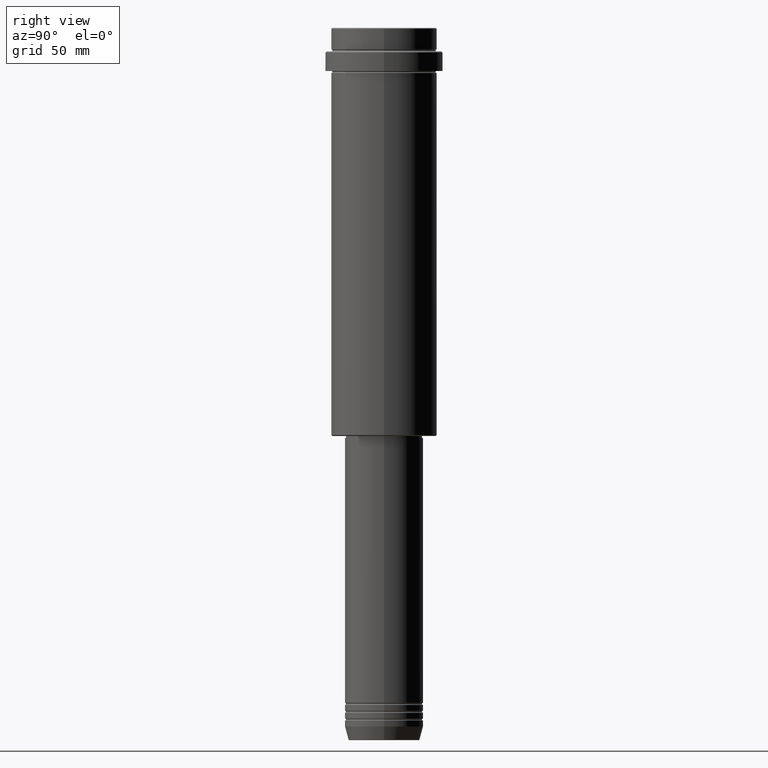
[diagram: clean part render]
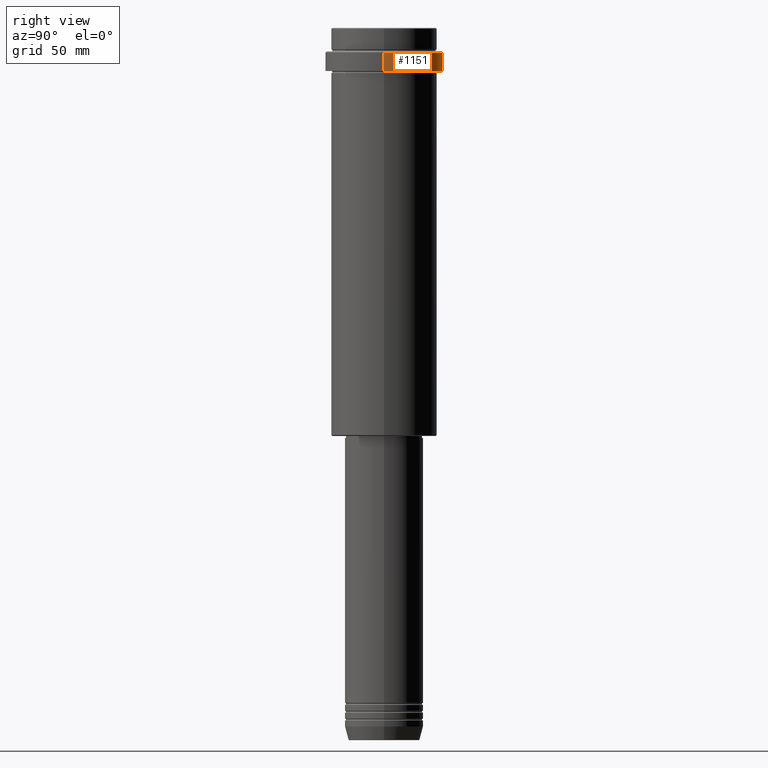
[diagram: same view with one face highlighted and labeled with its STEP entity id]
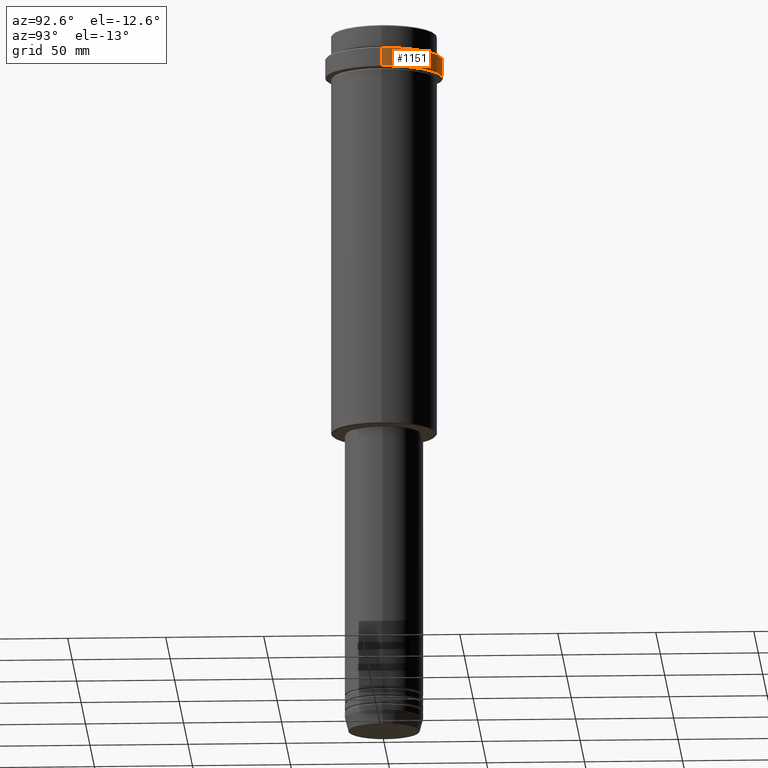
[diagram: same view with one face highlighted and labeled with its STEP entity id]
A machine part, right view. The second image highlights one B-rep face of the part: STEP entity #1151.
A second angle (auxiliary view) of the same face is appended — the face is thin or edge-on in the first view.
In plain terms, the highlighted cylindrical surface (partial cylindrical patch) has radius 30 mm, axis along (-0, -0, 1).
Its self-contained STEP definition (entity closure, byte-faithful):
#21 = CARTESIAN_POINT ( 'NONE',  ( 0.000000000000000000, 0.000000000000000000, -12.50000000000006573 ) ) ;
#29 = EDGE_LOOP ( 'NONE', ( #724, #1277, #457, #1069 ) ) ;
#57 = EDGE_CURVE ( 'NONE', #966, #819, #621, .T. ) ;
#104 = DIRECTION ( 'NONE',  ( 1.000000000000000000, 0.000000000000000000, 0.000000000000000000 ) ) ;
#147 = LINE ( 'NONE', #501, #812 ) ;
#182 = DIRECTION ( 'NONE',  ( -0.000000000000000000, -0.000000000000000000, 1.000000000000000000 ) ) ;
#190 = EDGE_CURVE ( 'NONE', #1194, #1098, #147, .T. ) ;
#192 = DIRECTION ( 'NONE',  ( -0.000000000000000000, -0.000000000000000000, 1.000000000000000000 ) ) ;
#264 = FACE_OUTER_BOUND ( 'NONE', #29, .T. ) ;
#271 = DIRECTION ( 'NONE',  ( -0.000000000000000000, -0.000000000000000000, 1.000000000000000000 ) ) ;
#354 = AXIS2_PLACEMENT_3D ( 'NONE', #1125, #271, #725 ) ;
#411 = CARTESIAN_POINT ( 'NONE',  ( -29.99999999999999645, 3.673940397442058389E-15, -22.00000000000000355 ) ) ;
#457 = ORIENTED_EDGE ( 'NONE', *, *, #1375, .T. ) ;
#501 = CARTESIAN_POINT ( 'NONE',  ( -30.00000000000000000, 3.673940397442059178E-15, 0.000000000000000000 ) ) ;
#621 = LINE ( 'NONE', #638, #899 ) ;
#627 = CARTESIAN_POINT ( 'NONE',  ( 30.00000000000000000, 0.000000000000000000, -12.50000000000006573 ) ) ;
#638 = CARTESIAN_POINT ( 'NONE',  ( 30.00000000000000000, 0.000000000000000000, 0.000000000000000000 ) ) ;
#724 = ORIENTED_EDGE ( 'NONE', *, *, #755, .T. ) ;
#725 = DIRECTION ( 'NONE',  ( 1.000000000000000000, 0.000000000000000000, 0.000000000000000000 ) ) ;
#743 = DIRECTION ( 'NONE',  ( -0.000000000000000000, -0.000000000000000000, 1.000000000000000000 ) ) ;
#755 = EDGE_CURVE ( 'NONE', #966, #1194, #1361, .T. ) ;
#798 = DIRECTION ( 'NONE',  ( 0.000000000000000000, 0.000000000000000000, -1.000000000000000000 ) ) ;
#812 = VECTOR ( 'NONE', #192, 1000.000000000000000 ) ;
#819 = VERTEX_POINT ( 'NONE', #627 ) ;
#899 = VECTOR ( 'NONE', #743, 1000.000000000000000 ) ;
#966 = VERTEX_POINT ( 'NONE', #1391 ) ;
#1033 = CIRCLE ( 'NONE', #1273, 30.00000000000000000 ) ;
#1069 = ORIENTED_EDGE ( 'NONE', *, *, #57, .F. ) ;
#1098 = VERTEX_POINT ( 'NONE', #1235 ) ;
#1125 = CARTESIAN_POINT ( 'NONE',  ( 0.000000000000000000, 0.000000000000000000, 0.000000000000000000 ) ) ;
#1130 = CYLINDRICAL_SURFACE ( 'NONE', #354, 30.00000000000000000 ) ;
#1151 = ADVANCED_FACE ( 'NONE', ( #264 ), #1130, .T. ) ;
#1194 = VERTEX_POINT ( 'NONE', #411 ) ;
#1235 = CARTESIAN_POINT ( 'NONE',  ( -30.00000000000000000, 3.673940397442059178E-15, -12.50000000000006573 ) ) ;
#1273 = AXIS2_PLACEMENT_3D ( 'NONE', #21, #798, #104 ) ;
#1277 = ORIENTED_EDGE ( 'NONE', *, *, #190, .T. ) ;
#1353 = CARTESIAN_POINT ( 'NONE',  ( 0.000000000000000000, 0.000000000000000000, -22.00000000000000355 ) ) ;
#1361 = CIRCLE ( 'NONE', #1384, 29.99999999999999645 ) ;
#1367 = DIRECTION ( 'NONE',  ( 1.000000000000000000, 0.000000000000000000, 0.000000000000000000 ) ) ;
#1375 = EDGE_CURVE ( 'NONE', #1098, #819, #1033, .T. ) ;
#1384 = AXIS2_PLACEMENT_3D ( 'NONE', #1353, #182, #1367 ) ;
#1391 = CARTESIAN_POINT ( 'NONE',  ( 29.99999999999999645, 0.000000000000000000, -22.00000000000000355 ) ) ;